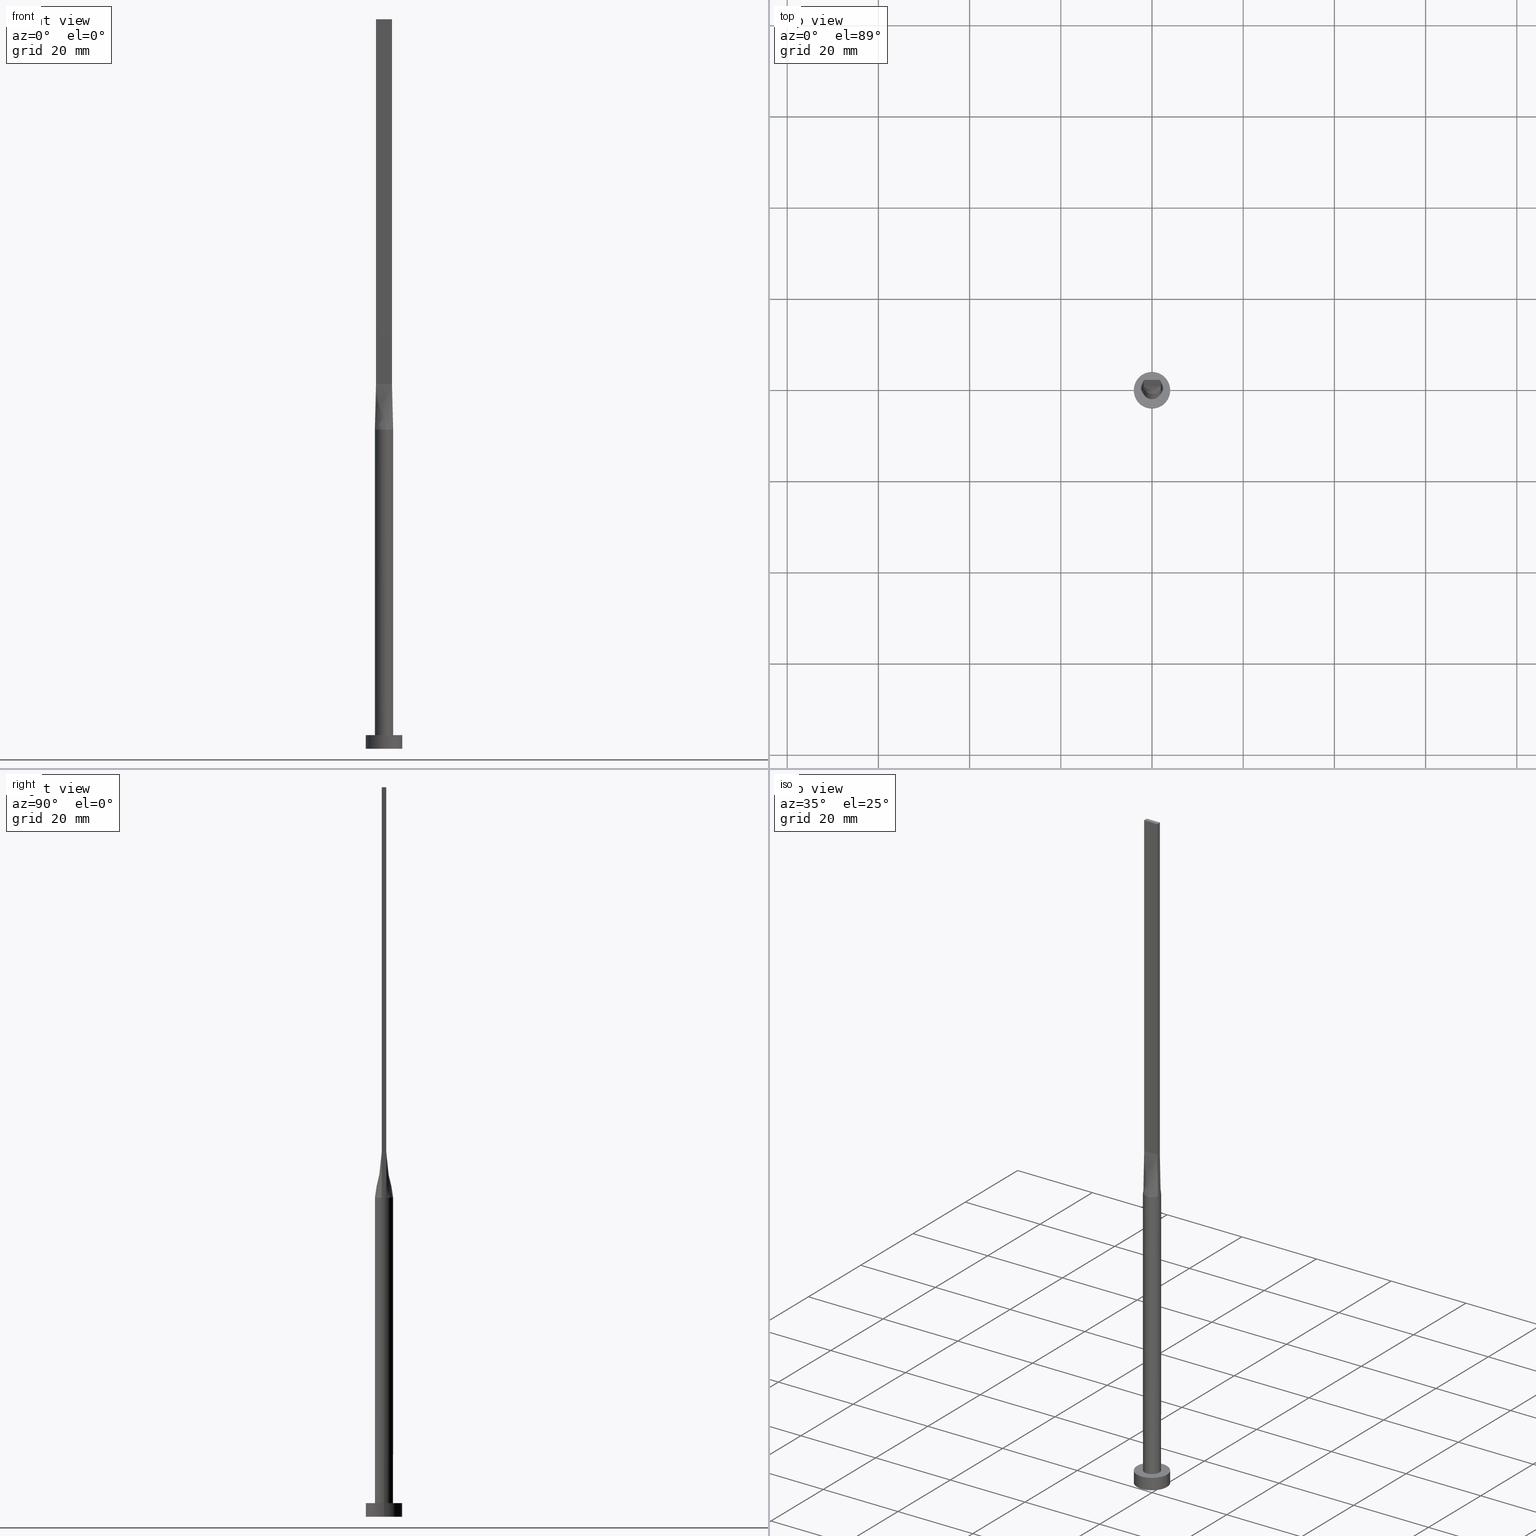
[diagram: canonical four-view strip — front | top / right | iso, engineering-drawing reading convention]
A machine part, canonical four-view strip (front | top / right | iso — engineering-drawing reading convention). The complete STEP part file that produces these views, byte-faithful:
ISO-10303-21;
HEADER;
FILE_DESCRIPTION (( 'STEP AP203' ),
    '1' );
FILE_NAME ('cb37.STEP',
    '2026-02-12T09:06:30',
    ( '' ),
    ( '' ),
    'SwSTEP 2.0',
    'SolidWorks 2019',
    '' );
FILE_SCHEMA (( 'CONFIG_CONTROL_DESIGN' ));
ENDSEC;

DATA;
#1 = CARTESIAN_POINT ( 'NONE',  ( -1.749999999999999778, 0.5000000000000002220, 80.00000000000000000 ) ) ;
#2 = CARTESIAN_POINT ( 'NONE',  ( 1.923154993136894975, 0.5494733089275741778, 70.00000000000000000 ) ) ;
#3 = ADVANCED_FACE ( 'NONE', ( #276 ), #285, .F. ) ;
#4 = AXIS2_PLACEMENT_3D ( 'NONE', #160, #113, #525 ) ;
#5 = CARTESIAN_POINT ( 'NONE',  ( 0.7291666666666657415, 0.5000000000000002220, 79.99999999999998579 ) ) ;
#6 = CARTESIAN_POINT ( 'NONE',  ( 0.000000000000000000, 0.000000000000000000, 3.000000000000000000 ) ) ;
#7 = CARTESIAN_POINT ( 'NONE',  ( -1.749999999999999778, 0.5000000000000002220, 80.00000000000000000 ) ) ;
#8 = PERSON_AND_ORGANIZATION ( #573, #201 ) ;
#9 = EDGE_CURVE ( 'NONE', #428, #472, #557, .T. ) ;
#10 = CARTESIAN_POINT ( 'NONE',  ( 4.000000000000000000, 4.898587196589412829E-16, 3.000000000000000000 ) ) ;
#11 = DATE_TIME_ROLE ( 'creation_date' ) ;
#12 = ORIENTED_EDGE ( 'NONE', *, *, #377, .T. ) ;
#13 = PRODUCT_RELATED_PRODUCT_CATEGORY ( 'detail', '', ( #562 ) ) ;
#14 = CARTESIAN_POINT ( 'NONE',  ( -0.9545234919502401105, 1.774214358793530177, 70.00000000000000000 ) ) ;
#15 = CARTESIAN_POINT ( 'NONE',  ( 1.923047895281646325, 0.5494422557947563623, 70.00000000000000000 ) ) ;
#16 = CARTESIAN_POINT ( 'NONE',  ( 1.750000000000000000, -0.4999999999999997780, 160.0000000000000000 ) ) ;
#17 = SHAPE_DEFINITION_REPRESENTATION ( #420, #107 ) ;
#18 = CARTESIAN_POINT ( 'NONE',  ( 1.999999999999999556, 0.1867399261870121008, 70.00000000000000000 ) ) ;
#19 = APPROVAL_PERSON_ORGANIZATION ( #337, #31, #155 ) ;
#20 = DIRECTION ( 'NONE',  ( 0.01730198768854153066, -0.004943425053868934910, 0.9998380887777591486 ) ) ;
#21 = ADVANCED_FACE ( 'NONE', ( #509 ), #36, .T. ) ;
#22 = CARTESIAN_POINT ( 'NONE',  ( 1.749999999999999778, 0.5000000000000002220, 160.0000000000000000 ) ) ;
#23 = DIRECTION ( 'NONE',  ( 0.000000000000000000, 0.000000000000000000, 1.000000000000000000 ) ) ;
#24 = CIRCLE ( 'NONE', #213, 2.000000000000000000 ) ;
#25 = COORDINATED_UNIVERSAL_TIME_OFFSET ( 1, 0, .AHEAD. ) ;
#26 = CARTESIAN_POINT ( 'NONE',  ( 1.749999999999999778, -0.1666666666666663243, 79.99999999999998579 ) ) ;
#27 = LINE ( 'NONE', #16, #269 ) ;
#28 = ORIENTED_EDGE ( 'NONE', *, *, #558, .F. ) ;
#29 = CARTESIAN_POINT ( 'NONE',  ( -1.836523947640823051, 0.5247211278973779036, 75.00000000000001421 ) ) ;
#30 = ORIENTED_EDGE ( 'NONE', *, *, #558, .T. ) ;
#31 = APPROVAL ( #196, 'NEUR�EN�' ) ;
#32 = DIRECTION ( 'NONE',  ( -2.168404344971009361E-16, -1.000000000000000000, 0.000000000000000000 ) ) ;
#33 = CARTESIAN_POINT ( 'NONE',  ( -0.1458333333333353687, -0.4999999999999995559, 80.00000000000000000 ) ) ;
#34 = VECTOR ( 'NONE', #475, 1000.000000000000000 ) ;
#35 = ORIENTED_EDGE ( 'NONE', *, *, #457, .F. ) ;
#36 = B_SPLINE_SURFACE_WITH_KNOTS ( 'NONE', 3, 1, ( 
 ( #560, #520 ),
 ( #372, #98 ),
 ( #150, #26 ),
 ( #18, #279 ),
 ( #554, #415 ),
 ( #15, #197 ) ),
 .UNSPECIFIED., .F., .F., .F.,
 ( 4, 2, 4 ),
 ( 2, 2 ),
 ( 0.000000000000000000, 0.5000000000000000000, 1.000000000000000000 ),
 ( 0.000000000000000000, 1.000000000000000000 ),
 .UNSPECIFIED. ) ;
#37 = LINE ( 'NONE', #575, #544 ) ;
#38 = CARTESIAN_POINT ( 'NONE',  ( 0.9545234919502404436, -1.774214358793530177, 69.99999999999998579 ) ) ;
#39 = EDGE_LOOP ( 'NONE', ( #293, #80, #515, #35, #162 ) ) ;
#40 = DIRECTION ( 'NONE',  ( 1.000000000000000000, 0.000000000000000000, -0.000000000000000000 ) ) ;
#41 = EDGE_CURVE ( 'NONE', #249, #257, #168, .T. ) ;
#42 = CARTESIAN_POINT ( 'NONE',  ( -0.5022746254375808350, -1.951069421695587724, 69.99999999999998579 ) ) ;
#43 = CARTESIAN_POINT ( 'NONE',  ( 1.750000000000000000, -0.4999999999999997780, 80.00000000000000000 ) ) ;
#44 = EDGE_CURVE ( 'NONE', #299, #421, #229, .T. ) ;
#45 = CARTESIAN_POINT ( 'NONE',  ( -1.923047895281646325, 0.5494422557947555852, 70.00000000000000000 ) ) ;
#46 = ORIENTED_EDGE ( 'NONE', *, *, #9, .F. ) ;
#47 = PLANE ( 'NONE',  #424 ) ;
#48 = DATE_AND_TIME ( #136, #432 ) ;
#49 = ORIENTED_EDGE ( 'NONE', *, *, #275, .F. ) ;
#50 = CIRCLE ( 'NONE', #455, 2.000000000000000000 ) ;
#51 = CARTESIAN_POINT ( 'NONE',  ( -0.2514338042514528415, 1.999999999999999556, 70.00000000000002842 ) ) ;
#52 = CARTESIAN_POINT ( 'NONE',  ( 0.2514338042514535632, 1.999999999999999556, 70.00000000000001421 ) ) ;
#53 = APPROVAL_DATE_TIME ( #48, #321 ) ;
#54 = DIRECTION ( 'NONE',  ( 0.000000000000000000, 0.000000000000000000, 1.000000000000000000 ) ) ;
#55 = CARTESIAN_POINT ( 'NONE',  ( 1.486037034853319616, 1.356520562679217834, 69.99999999999998579 ) ) ;
#56 = DIRECTION ( 'NONE',  ( 2.168404344971009361E-16, 1.000000000000000000, 0.000000000000000000 ) ) ;
#57 = AXIS2_PLACEMENT_3D ( 'NONE', #157, #77, #301 ) ;
#58 = CYLINDRICAL_SURFACE ( 'NONE', #454, 4.000000000000000000 ) ;
#59 = PERSON_AND_ORGANIZATION ( #573, #201 ) ;
#60 = CARTESIAN_POINT ( 'NONE',  ( -1.749999999999999778, 0.5000000000000002220, 160.0000000000000000 ) ) ;
#61 = ADVANCED_FACE ( 'NONE', ( #378 ), #143, .F. ) ;
#62 = CARTESIAN_POINT ( 'NONE',  ( -1.879022738048941710, 0.7035303061092221810, 70.00000000000000000 ) ) ;
#63 = ORIENTED_EDGE ( 'NONE', *, *, #492, .F. ) ;
#64 = LOCAL_TIME ( 10, 6, 30.00000000000000000, #431 ) ;
#65 = DIRECTION ( 'NONE',  ( 0.000000000000000000, 0.000000000000000000, 1.000000000000000000 ) ) ;
#66 = PERSON_AND_ORGANIZATION_ROLE ( 'classification_officer' ) ;
#67 = ORIENTED_EDGE ( 'NONE', *, *, #235, .T. ) ;
#68 = DIRECTION ( 'NONE',  ( -0.000000000000000000, -0.000000000000000000, -1.000000000000000000 ) ) ;
#69 = VECTOR ( 'NONE', #394, 1000.000000000000114 ) ;
#70 = ORIENTED_EDGE ( 'NONE', *, *, #230, .T. ) ;
#71 = DIRECTION ( 'NONE',  ( 1.000000000000000000, 0.000000000000000000, 0.000000000000000000 ) ) ;
#72 = VERTEX_POINT ( 'NONE', #517 ) ;
#73 = CC_DESIGN_PERSON_AND_ORGANIZATION_ASSIGNMENT ( #563, #66, ( #191 ) ) ;
#74 = CARTESIAN_POINT ( 'NONE',  ( -1.750000000000000000, -0.4999999999999995559, 160.0000000000000000 ) ) ;
#75 = CARTESIAN_POINT ( 'NONE',  ( 1.020833333333331927, -0.4999999999999995559, 79.99999999999998579 ) ) ;
#76 = ORIENTED_EDGE ( 'NONE', *, *, #358, .T. ) ;
#77 = DIRECTION ( 'NONE',  ( 0.000000000000000000, 0.000000000000000000, 1.000000000000000000 ) ) ;
#78 = CARTESIAN_POINT ( 'NONE',  ( -0.7291666666666681840, -0.4999999999999995559, 79.99999999999998579 ) ) ;
#79 = ORIENTED_EDGE ( 'NONE', *, *, #408, .T. ) ;
#80 = ORIENTED_EDGE ( 'NONE', *, *, #484, .T. ) ;
#81 = ADVANCED_FACE ( 'NONE', ( #105 ), #338, .T. ) ;
#82 = CARTESIAN_POINT ( 'NONE',  ( -1.973362360690451567, 0.3733416268639390134, 70.00000000000001421 ) ) ;
#83 = CARTESIAN_POINT ( 'NONE',  ( 0.2514338042514523419, -2.000000000000000444, 70.00000000000001421 ) ) ;
#84 = CARTESIAN_POINT ( 'NONE',  ( -0.2916666666666685725, -0.4999999999999995559, 79.99999999999998579 ) ) ;
#85 = VECTOR ( 'NONE', #133, 1000.000000000000000 ) ;
#86 = CARTESIAN_POINT ( 'NONE',  ( 1.749999999999998890, 0.5000000000000002220, 80.00000000000000000 ) ) ;
#87 = DIRECTION ( 'NONE',  ( 0.000000000000000000, 0.000000000000000000, 1.000000000000000000 ) ) ;
#88 = CC_DESIGN_PERSON_AND_ORGANIZATION_ASSIGNMENT ( #90, #264, ( #562 ) ) ;
#89 = CARTESIAN_POINT ( 'NONE',  ( -0.5022746254375797248, 1.951069421695588169, 70.00000000000000000 ) ) ;
#90 = PERSON_AND_ORGANIZATION ( #573, #201 ) ;
#91 = CARTESIAN_POINT ( 'NONE',  ( 1.458333333333332371, 0.5000000000000002220, 79.99999999999998579 ) ) ;
#92 = DIRECTION ( 'NONE',  ( -0.000000000000000000, -0.000000000000000000, -1.000000000000000000 ) ) ;
#93 = EDGE_LOOP ( 'NONE', ( #233, #159, #108, #405, #138, #487 ) ) ;
#94 = CARTESIAN_POINT ( 'NONE',  ( 0.5022746254375803909, 1.951069421695587947, 70.00000000000001421 ) ) ;
#95 = ADVANCED_FACE ( 'NONE', ( #486 ), #165, .T. ) ;
#96 = CARTESIAN_POINT ( 'NONE',  ( 1.750000000000000000, -0.4999999999999997780, 160.0000000000000000 ) ) ;
#97 = DIRECTION ( 'NONE',  ( 1.000000000000000000, -6.195440985631454085E-17, 0.000000000000000000 ) ) ;
#98 = CARTESIAN_POINT ( 'NONE',  ( 1.749999999999999778, -0.3333333333333330373, 79.99999999999998579 ) ) ;
#99 = DIRECTION ( 'NONE',  ( 1.000000000000000000, 0.000000000000000000, 0.000000000000000000 ) ) ;
#100 = DIRECTION ( 'NONE',  ( 0.000000000000000000, -1.000000000000000000, 0.000000000000000000 ) ) ;
#101 = ADVANCED_FACE ( 'NONE', ( #306 ), #398, .F. ) ;
#102 = DIRECTION ( 'NONE',  ( 1.000000000000000000, 0.000000000000000000, -0.000000000000000000 ) ) ;
#103 = EDGE_LOOP ( 'NONE', ( #49, #203, #551, #253 ) ) ;
#104 = CARTESIAN_POINT ( 'NONE',  ( 1.749999999999999778, 0.5000000000000002220, 80.00000000000000000 ) ) ;
#105 = FACE_OUTER_BOUND ( 'NONE', #343, .T. ) ;
#106 = PLANE ( 'NONE',  #205 ) ;
#107 = ADVANCED_BREP_SHAPE_REPRESENTATION ( 'cb37', ( #267, #305 ), #182 ) ;
#108 = ORIENTED_EDGE ( 'NONE', *, *, #243, .T. ) ;
#109 = AXIS2_PLACEMENT_3D ( 'NONE', #536, #401, #507 ) ;
#110 = CARTESIAN_POINT ( 'NONE',  ( -1.923179810488875541, 0.5494804890868837388, 70.00000000000000000 ) ) ;
#111 = ADVANCED_FACE ( 'NONE', ( #532 ), #468, .T. ) ;
#112 = ORIENTED_EDGE ( 'NONE', *, *, #235, .F. ) ;
#113 = DIRECTION ( 'NONE',  ( 0.000000000000000000, 0.000000000000000000, 1.000000000000000000 ) ) ;
#114 = CARTESIAN_POINT ( 'NONE',  ( -1.750000000000000000, -0.4999999999999995559, 80.00000000000000000 ) ) ;
#115 = VERTEX_POINT ( 'NONE', #166 ) ;
#116 = EDGE_LOOP ( 'NONE', ( #67, #173, #46, #569 ) ) ;
#117 = CARTESIAN_POINT ( 'NONE',  ( -1.750000000000000000, -0.4999999999999995559, 160.0000000000000000 ) ) ;
#118 = CARTESIAN_POINT ( 'NONE',  ( -1.155438169178558461, -1.647245198242353714, 70.00000000000001421 ) ) ;
#119 = ORIENTED_EDGE ( 'NONE', *, *, #377, .F. ) ;
#120 = LINE ( 'NONE', #140, #319 ) ;
#121 = VECTOR ( 'NONE', #479, 1000.000000000000000 ) ;
#122 = CARTESIAN_POINT ( 'NONE',  ( -1.749999999999999778, -0.1666666666666665186, 79.99999999999998579 ) ) ;
#123 = AXIS2_PLACEMENT_3D ( 'NONE', #214, #581, #170 ) ;
#124 = CARTESIAN_POINT ( 'NONE',  ( -1.812374357931689994, -0.8669367617086277678, 70.00000000000001421 ) ) ;
#125 = CARTESIAN_POINT ( 'NONE',  ( -1.749999999999999778, 0.1666666666666667129, 79.99999999999998579 ) ) ;
#126 = CARTESIAN_POINT ( 'NONE',  ( 1.923047895281646325, 0.5494422557947561403, 70.00000000000000000 ) ) ;
#127 = CARTESIAN_POINT ( 'NONE',  ( -1.750000000000000000, -0.4999999999999995559, 80.00000000000000000 ) ) ;
#128 = CC_DESIGN_PERSON_AND_ORGANIZATION_ASSIGNMENT ( #59, #423, ( #217 ) ) ;
#129 = AXIS2_PLACEMENT_3D ( 'NONE', #144, #340, #519 ) ;
#130 = CARTESIAN_POINT ( 'NONE',  ( 0.2514338042514535632, 1.999999999999999556, 70.00000000000001421 ) ) ;
#131 = DIRECTION ( 'NONE',  ( 1.000000000000000000, 0.000000000000000000, 0.000000000000000000 ) ) ;
#132 = DIRECTION ( 'NONE',  ( 6.195440985631454085E-17, 1.000000000000000000, -0.000000000000000000 ) ) ;
#133 = DIRECTION ( 'NONE',  ( -2.168404344971009361E-16, -1.000000000000000000, 0.000000000000000000 ) ) ;
#134 = ADVANCED_FACE ( 'NONE', ( #351 ), #529, .T. ) ;
#135 = CARTESIAN_POINT ( 'NONE',  ( 1.616149014776643522, 1.193458220519943103, 69.99999999999998579 ) ) ;
#136 = CALENDAR_DATE ( 2026, 12, 2 ) ;
#137 = AXIS2_PLACEMENT_3D ( 'NONE', #60, #418, #56 ) ;
#138 = ORIENTED_EDGE ( 'NONE', *, *, #250, .F. ) ;
#139 = CARTESIAN_POINT ( 'NONE',  ( -1.879022738048941710, 0.7035303061092221810, 70.00000000000000000 ) ) ;
#140 = CARTESIAN_POINT ( 'NONE',  ( -1.836523947640823273, -0.5247211278973773485, 75.00000000000001421 ) ) ;
#141 = ORIENTED_EDGE ( 'NONE', *, *, #243, .F. ) ;
#142 = CYLINDRICAL_SURFACE ( 'NONE', #556, 2.000000000000000000 ) ;
#143 = PLANE ( 'NONE',  #222 ) ;
#144 = CARTESIAN_POINT ( 'NONE',  ( 0.000000000000000000, 0.000000000000000000, 3.000000000000000000 ) ) ;
#145 = SECURITY_CLASSIFICATION_LEVEL ( 'unclassified' ) ;
#146 = EDGE_LOOP ( 'NONE', ( #425, #200, #211, #393, #76, #478 ) ) ;
#147 = EDGE_LOOP ( 'NONE', ( #574, #63, #349, #323 ) ) ;
#148 = AXIS2_PLACEMENT_3D ( 'NONE', #283, #23, #419 ) ;
#149 = DIRECTION ( 'NONE',  ( 0.000000000000000000, 0.000000000000000000, 1.000000000000000000 ) ) ;
#150 = CARTESIAN_POINT ( 'NONE',  ( 1.999999999999999556, -0.1867399261870124894, 70.00000000000000000 ) ) ;
#151 = DIRECTION ( 'NONE',  ( -0.000000000000000000, -0.000000000000000000, -1.000000000000000000 ) ) ;
#152 = APPROVAL_ROLE ( '' ) ;
#153 = EDGE_LOOP ( 'NONE', ( #70, #411, #112, #324 ) ) ;
#154 = CARTESIAN_POINT ( 'NONE',  ( 0.000000000000000000, 0.000000000000000000, 70.00000000000000000 ) ) ;
#155 = APPROVAL_ROLE ( '' ) ;
#156 = VERTEX_POINT ( 'NONE', #355 ) ;
#157 = CARTESIAN_POINT ( 'NONE',  ( 0.000000000000000000, 0.000000000000000000, 70.00000000000000000 ) ) ;
#158 = VECTOR ( 'NONE', #335, 1000.000000000000000 ) ;
#159 = ORIENTED_EDGE ( 'NONE', *, *, #163, .T. ) ;
#160 = CARTESIAN_POINT ( 'NONE',  ( 0.000000000000000000, 0.000000000000000000, 3.000000000000000000 ) ) ;
#161 = CARTESIAN_POINT ( 'NONE',  ( -1.973362360690451345, -0.3733416268639377367, 70.00000000000000000 ) ) ;
#162 = ORIENTED_EDGE ( 'NONE', *, *, #314, .F. ) ;
#163 = EDGE_CURVE ( 'NONE', #249, #433, #534, .T. ) ;
#164 = CARTESIAN_POINT ( 'NONE',  ( -1.923179810488875541, 0.5494804890868837388, 70.00000000000000000 ) ) ;
#165 = B_SPLINE_SURFACE_WITH_KNOTS ( 'NONE', 3, 1, ( 
 ( #482, #1 ),
 ( #82, #207 ),
 ( #571, #125 ),
 ( #392, #122 ),
 ( #161, #216 ),
 ( #357, #493 ) ),
 .UNSPECIFIED., .F., .F., .F.,
 ( 4, 2, 4 ),
 ( 2, 2 ),
 ( 0.000000000000000000, 0.5000000000000000000, 1.000000000000000000 ),
 ( 0.000000000000000000, 1.000000000000000000 ),
 .UNSPECIFIED. ) ;
#166 = CARTESIAN_POINT ( 'NONE',  ( 1.923186205402444449, -0.5494823831763672173, 70.00000000000000000 ) ) ;
#167 = UNCERTAINTY_MEASURE_WITH_UNIT (LENGTH_MEASURE( 1.000000000000000082E-05 ), #359, 'distance_accuracy_value', 'NONE');
#168 = CIRCLE ( 'NONE', #414, 2.000000000000000000 ) ;
#169 = CARTESIAN_POINT ( 'NONE',  ( -1.486037034853320060, -1.356520562679217390, 70.00000000000001421 ) ) ;
#170 = DIRECTION ( 'NONE',  ( -1.000000000000000000, 0.000000000000000000, 0.000000000000000000 ) ) ;
#171 = ADVANCED_FACE ( 'NONE', ( #179 ), #535, .F. ) ;
#172 = CARTESIAN_POINT ( 'NONE',  ( 1.616149014776643522, -1.193458220519943547, 70.00000000000002842 ) ) ;
#173 = ORIENTED_EDGE ( 'NONE', *, *, #539, .F. ) ;
#174 = CARTESIAN_POINT ( 'NONE',  ( 1.812374357931689328, 0.8669367617086293221, 70.00000000000001421 ) ) ;
#175 = VECTOR ( 'NONE', #430, 1000.000000000000114 ) ;
#176 = DIRECTION ( 'NONE',  ( -0.000000000000000000, -0.000000000000000000, -1.000000000000000000 ) ) ;
#177 = COORDINATED_UNIVERSAL_TIME_OFFSET ( 1, 0, .AHEAD. ) ;
#178 = ADVANCED_FACE ( 'NONE', ( #403 ), #47, .F. ) ;
#179 = FACE_OUTER_BOUND ( 'NONE', #247, .T. ) ;
#180 = LINE ( 'NONE', #312, #85 ) ;
#181 = ORIENTED_EDGE ( 'NONE', *, *, #492, .T. ) ;
#182 =( GEOMETRIC_REPRESENTATION_CONTEXT ( 3 ) GLOBAL_UNCERTAINTY_ASSIGNED_CONTEXT ( ( #167 ) ) GLOBAL_UNIT_ASSIGNED_CONTEXT ( ( #359, #274, #365 ) ) REPRESENTATION_CONTEXT ( 'NONE', 'WORKASPACE' ) );
#183 = CARTESIAN_POINT ( 'NONE',  ( 1.616149014776643522, 1.193458220519943103, 69.99999999999998579 ) ) ;
#184 = ORIENTED_EDGE ( 'NONE', *, *, #446, .F. ) ;
#185 = DIRECTION ( 'NONE',  ( 2.168404344971008868E-16, -1.000000000000000000, 0.000000000000000000 ) ) ;
#186 = DIRECTION ( 'NONE',  ( 0.000000000000000000, 0.000000000000000000, 1.000000000000000000 ) ) ;
#187 = LINE ( 'NONE', #382, #261 ) ;
#188 = B_SPLINE_SURFACE_WITH_KNOTS ( 'NONE', 3, 1, ( 
 ( #126, #86 ),
 ( #273, #459 ),
 ( #500, #91 ),
 ( #135, #504 ),
 ( #55, #311 ),
 ( #308, #5 ),
 ( #542, #263 ),
 ( #94, #315 ),
 ( #52, #461 ),
 ( #51, #364 ),
 ( #400, #268 ),
 ( #218, #540 ),
 ( #456, #226 ),
 ( #495, #450 ),
 ( #409, #406 ),
 ( #412, #498 ),
 ( #139, #223 ),
 ( #45, #7 ) ),
 .UNSPECIFIED., .F., .F., .F.,
 ( 4, 2, 2, 2, 2, 2, 2, 2, 4 ),
 ( 2, 2 ),
 ( 0.000000000000000000, 0.1249999999999999722, 0.2500000000000000000, 0.3750000000000000000, 0.5000000000000001110, 0.6250000000000001110, 0.7500000000000000000, 0.8750000000000000000, 1.000000000000000000 ),
 ( 0.000000000000000000, 1.000000000000000000 ),
 .UNSPECIFIED. ) ;
#189 = APPLICATION_CONTEXT ( 'configuration controlled 3d designs of mechanical parts and assemblies' ) ;
#190 = CARTESIAN_POINT ( 'NONE',  ( -4.000000000000000000, 0.000000000000000000, 3.000000000000000000 ) ) ;
#191 = SECURITY_CLASSIFICATION ( '', '', #145 ) ;
#192 = LINE ( 'NONE', #280, #34 ) ;
#193 = DIRECTION ( 'NONE',  ( -1.000000000000000000, 0.000000000000000000, 0.000000000000000000 ) ) ;
#194 = AXIS2_PLACEMENT_3D ( 'NONE', #245, #427, #71 ) ;
#195 = LINE ( 'NONE', #333, #332 ) ;
#196 = APPROVAL_STATUS ( 'not_yet_approved' ) ;
#197 = CARTESIAN_POINT ( 'NONE',  ( 1.749999999999999778, 0.5000000000000002220, 80.00000000000000000 ) ) ;
#198 = DIRECTION ( 'NONE',  ( -0.000000000000000000, -0.000000000000000000, -1.000000000000000000 ) ) ;
#199 = ORIENTED_EDGE ( 'NONE', *, *, #426, .T. ) ;
#200 = ORIENTED_EDGE ( 'NONE', *, *, #429, .F. ) ;
#201 = ORGANIZATION ( 'NEUR�EN�', 'NEUR�EN�', '' ) ;
#202 = CARTESIAN_POINT ( 'NONE',  ( 2.000000000000000000, 2.449293598294706414E-16, 3.000000000000000000 ) ) ;
#203 = ORIENTED_EDGE ( 'NONE', *, *, #388, .T. ) ;
#204 = DIRECTION ( 'NONE',  ( 1.000000000000000000, 0.000000000000000000, 0.000000000000000000 ) ) ;
#205 = AXIS2_PLACEMENT_3D ( 'NONE', #288, #65, #102 ) ;
#206 = ADVANCED_FACE ( 'NONE', ( #220 ), #188, .T. ) ;
#207 = CARTESIAN_POINT ( 'NONE',  ( -1.749999999999999778, 0.3333333333333334259, 79.99999999999998579 ) ) ;
#208 = EDGE_LOOP ( 'NONE', ( #396, #548, #119, #512 ) ) ;
#209 = LINE ( 'NONE', #485, #579 ) ;
#210 = CARTESIAN_POINT ( 'NONE',  ( -1.879022738048942598, -0.7035303061092208488, 70.00000000000001421 ) ) ;
#211 = ORIENTED_EDGE ( 'NONE', *, *, #408, .F. ) ;
#212 = CARTESIAN_POINT ( 'NONE',  ( -1.166666666666667851, -0.4999999999999995559, 79.99999999999998579 ) ) ;
#213 = AXIS2_PLACEMENT_3D ( 'NONE', #481, #251, #204 ) ;
#214 = CARTESIAN_POINT ( 'NONE',  ( 0.000000000000000000, 0.000000000000000000, 70.00000000000000000 ) ) ;
#215 = CC_DESIGN_DATE_AND_TIME_ASSIGNMENT ( #374, #466, ( #191 ) ) ;
#216 = CARTESIAN_POINT ( 'NONE',  ( -1.749999999999999778, -0.3333333333333330373, 79.99999999999998579 ) ) ;
#217 = PRODUCT_DEFINITION_FORMATION_WITH_SPECIFIED_SOURCE ( 'LIBOVOLN�', '', #562, .NOT_KNOWN. ) ;
#218 = CARTESIAN_POINT ( 'NONE',  ( -0.9545234919502401105, 1.774214358793530177, 70.00000000000000000 ) ) ;
#219 = DIRECTION ( 'NONE',  ( -1.000000000000000000, 0.000000000000000000, 0.000000000000000000 ) ) ;
#220 = FACE_OUTER_BOUND ( 'NONE', #153, .T. ) ;
#221 = PERSON_AND_ORGANIZATION ( #573, #201 ) ;
#222 = AXIS2_PLACEMENT_3D ( 'NONE', #383, #100, #282 ) ;
#223 = CARTESIAN_POINT ( 'NONE',  ( -1.604166666666666519, 0.5000000000000002220, 79.99999999999998579 ) ) ;
#224 = APPLICATION_PROTOCOL_DEFINITION ( 'international standard', 'config_control_design', 1994, #442 ) ;
#225 = VERTEX_POINT ( 'NONE', #10 ) ;
#226 = CARTESIAN_POINT ( 'NONE',  ( -0.7291666666666671848, 0.5000000000000002220, 79.99999999999998579 ) ) ;
#227 = PERSON_AND_ORGANIZATION_ROLE ( 'creator' ) ;
#228 = LOCAL_TIME ( 10, 6, 30.00000000000000000, #511 ) ;
#229 = LINE ( 'NONE', #190, #158 ) ;
#230 = EDGE_CURVE ( 'NONE', #257, #474, #497, .T. ) ;
#231 = DIRECTION ( 'NONE',  ( -1.000000000000000000, -2.168404344971008868E-16, 0.000000000000000000 ) ) ;
#232 = DIRECTION ( 'NONE',  ( -0.01730198768854153066, -0.004943425053868957461, -0.9998380887777591486 ) ) ;
#233 = ORIENTED_EDGE ( 'NONE', *, *, #41, .F. ) ;
#234 = AXIS2_PLACEMENT_3D ( 'NONE', #154, #149, #516 ) ;
#235 = EDGE_CURVE ( 'NONE', #290, #296, #195, .T. ) ;
#236 = DIRECTION ( 'NONE',  ( -0.000000000000000000, -0.000000000000000000, -1.000000000000000000 ) ) ;
#237 = CALENDAR_DATE ( 2026, 12, 2 ) ;
#238 = ORIENTED_EDGE ( 'NONE', *, *, #429, .T. ) ;
#239 = CARTESIAN_POINT ( 'NONE',  ( 1.923154993136894975, 0.5494733089275741778, 70.00000000000000000 ) ) ;
#240 = ORIENTED_EDGE ( 'NONE', *, *, #518, .T. ) ;
#241 = CARTESIAN_POINT ( 'NONE',  ( 1.750000000000000000, -0.4999999999999997780, 80.00000000000000000 ) ) ;
#242 = PERSON_AND_ORGANIZATION_ROLE ( 'creator' ) ;
#243 = EDGE_CURVE ( 'NONE', #433, #72, #494, .T. ) ;
#244 = VERTEX_POINT ( 'NONE', #559 ) ;
#245 = CARTESIAN_POINT ( 'NONE',  ( 0.000000000000000000, 0.000000000000000000, 70.00000000000000000 ) ) ;
#246 = CALENDAR_DATE ( 2026, 12, 2 ) ;
#247 = EDGE_LOOP ( 'NONE', ( #390, #328, #402, #181 ) ) ;
#248 = CARTESIAN_POINT ( 'NONE',  ( 0.000000000000000000, 0.000000000000000000, 70.00000000000000000 ) ) ;
#249 = VERTEX_POINT ( 'NONE', #471 ) ;
#250 = EDGE_CURVE ( 'NONE', #474, #156, #438, .T. ) ;
#251 = DIRECTION ( 'NONE',  ( 0.000000000000000000, 0.000000000000000000, 1.000000000000000000 ) ) ;
#252 = CARTESIAN_POINT ( 'NONE',  ( -0.9545234919502417759, -1.774214358793529067, 70.00000000000000000 ) ) ;
#253 = ORIENTED_EDGE ( 'NONE', *, *, #44, .F. ) ;
#254 = CARTESIAN_POINT ( 'NONE',  ( -1.749999999999999778, 0.5000000000000002220, 160.0000000000000000 ) ) ;
#255 = CIRCLE ( 'NONE', #4, 4.000000000000000000 ) ;
#256 = CARTESIAN_POINT ( 'NONE',  ( -0.5833333333333350357, -0.4999999999999995559, 79.99999999999998579 ) ) ;
#257 = VERTEX_POINT ( 'NONE', #239 ) ;
#258 = DIRECTION ( 'NONE',  ( 1.000000000000000000, 0.000000000000000000, -0.000000000000000000 ) ) ;
#259 = APPROVAL_PERSON_ORGANIZATION ( #8, #321, #543 ) ;
#260 = CARTESIAN_POINT ( 'NONE',  ( 1.166666666666665408, -0.4999999999999995559, 79.99999999999998579 ) ) ;
#261 = VECTOR ( 'NONE', #68, 1000.000000000000000 ) ;
#262 = CARTESIAN_POINT ( 'NONE',  ( 0.2916666666666649643, -0.4999999999999995559, 79.99999999999998579 ) ) ;
#263 = CARTESIAN_POINT ( 'NONE',  ( 0.5833333333333323711, 0.5000000000000002220, 79.99999999999998579 ) ) ;
#264 = PERSON_AND_ORGANIZATION_ROLE ( 'design_owner' ) ;
#265 = CARTESIAN_POINT ( 'NONE',  ( -1.155438169178558017, 1.647245198242353936, 70.00000000000001421 ) ) ;
#266 = APPROVAL_STATUS ( 'not_yet_approved' ) ;
#267 = MANIFOLD_SOLID_BREP ( 'P�idat vysunut�m5', #318 ) ;
#268 = CARTESIAN_POINT ( 'NONE',  ( -0.2916666666666674623, 0.5000000000000002220, 79.99999999999998579 ) ) ;
#269 = VECTOR ( 'NONE', #198, 1000.000000000000000 ) ;
#270 = ORIENTED_EDGE ( 'NONE', *, *, #446, .T. ) ;
#271 = VECTOR ( 'NONE', #92, 1000.000000000000000 ) ;
#272 = DESIGN_CONTEXT ( 'detailed design', #442, 'design' ) ;
#273 = CARTESIAN_POINT ( 'NONE',  ( 1.879022738048942154, 0.7035303061092218480, 70.00000000000001421 ) ) ;
#274 =( NAMED_UNIT ( * ) PLANE_ANGLE_UNIT ( ) SI_UNIT ( $, .RADIAN. ) );
#275 = EDGE_CURVE ( 'NONE', #225, #299, #489, .T. ) ;
#276 = FACE_OUTER_BOUND ( 'NONE', #147, .T. ) ;
#277 = CARTESIAN_POINT ( 'NONE',  ( 1.879022738048942154, 0.7035303061092218480, 70.00000000000001421 ) ) ;
#278 = CC_DESIGN_PERSON_AND_ORGANIZATION_ASSIGNMENT ( #334, #242, ( #217 ) ) ;
#279 = CARTESIAN_POINT ( 'NONE',  ( 1.749999999999999778, 0.1666666666666669905, 79.99999999999998579 ) ) ;
#280 = CARTESIAN_POINT ( 'NONE',  ( -2.000000000000000000, 0.000000000000000000, 70.00000000000000000 ) ) ;
#281 = APPROVAL_STATUS ( 'not_yet_approved' ) ;
#282 = DIRECTION ( 'NONE',  ( 0.000000000000000000, -0.000000000000000000, -1.000000000000000000 ) ) ;
#283 = CARTESIAN_POINT ( 'NONE',  ( 0.000000000000000000, 0.000000000000000000, 3.000000000000000000 ) ) ;
#284 = PERSON_AND_ORGANIZATION ( #573, #201 ) ;
#285 = PLANE ( 'NONE',  #137 ) ;
#286 = DIRECTION ( 'NONE',  ( -1.000000000000000000, 0.000000000000000000, 0.000000000000000000 ) ) ;
#287 = CARTESIAN_POINT ( 'NONE',  ( 0.000000000000000000, 0.000000000000000000, 70.00000000000000000 ) ) ;
#288 = CARTESIAN_POINT ( 'NONE',  ( 0.000000000000000000, 0.000000000000000000, 3.000000000000000000 ) ) ;
#289 = APPROVAL_DATE_TIME ( #550, #31 ) ;
#290 = VERTEX_POINT ( 'NONE', #104 ) ;
#291 = VECTOR ( 'NONE', #193, 1000.000000000000000 ) ;
#292 = FACE_OUTER_BOUND ( 'NONE', #93, .T. ) ;
#293 = ORIENTED_EDGE ( 'NONE', *, *, #250, .T. ) ;
#294 = CARTESIAN_POINT ( 'NONE',  ( -1.749999999999999778, 0.5000000000000002220, 80.00000000000000000 ) ) ;
#295 = CARTESIAN_POINT ( 'NONE',  ( 0.1458333333333314275, -0.4999999999999995559, 79.99999999999998579 ) ) ;
#296 = VERTEX_POINT ( 'NONE', #329 ) ;
#297 = DIRECTION ( 'NONE',  ( -0.000000000000000000, -0.000000000000000000, -1.000000000000000000 ) ) ;
#298 = CARTESIAN_POINT ( 'NONE',  ( -1.923047895281646547, -0.5494422557947552521, 70.00000000000000000 ) ) ;
#299 = VERTEX_POINT ( 'NONE', #417 ) ;
#300 = VERTEX_POINT ( 'NONE', #241 ) ;
#301 = DIRECTION ( 'NONE',  ( 1.000000000000000000, 3.552713678800500929E-15, 0.000000000000000000 ) ) ;
#302 = VECTOR ( 'NONE', #20, 1000.000000000000114 ) ;
#303 = CARTESIAN_POINT ( 'NONE',  ( -1.458333333333333925, -0.4999999999999995559, 79.99999999999998579 ) ) ;
#304 = CARTESIAN_POINT ( 'NONE',  ( 0.7291666666666650753, -0.4999999999999995559, 79.99999999999998579 ) ) ;
#305 = AXIS2_PLACEMENT_3D ( 'NONE', #496, #317, #131 ) ;
#306 = FACE_OUTER_BOUND ( 'NONE', #565, .T. ) ;
#307 = CIRCLE ( 'NONE', #57, 2.000000000000000000 ) ;
#308 = CARTESIAN_POINT ( 'NONE',  ( 1.155438169178558461, 1.647245198242353714, 70.00000000000001421 ) ) ;
#309 = COORDINATED_UNIVERSAL_TIME_OFFSET ( 1, 0, .AHEAD. ) ;
#310 = ADVANCED_FACE ( 'NONE', ( #292 ), #142, .T. ) ;
#311 = CARTESIAN_POINT ( 'NONE',  ( 1.020833333333332371, 0.5000000000000002220, 79.99999999999998579 ) ) ;
#312 = CARTESIAN_POINT ( 'NONE',  ( -1.749999999999999778, 0.5000000000000002220, 160.0000000000000000 ) ) ;
#313 = DIRECTION ( 'NONE',  ( -1.000000000000000000, 6.195440985631454085E-17, 0.000000000000000000 ) ) ;
#314 = EDGE_CURVE ( 'NONE', #474, #296, #473, .T. ) ;
#315 = CARTESIAN_POINT ( 'NONE',  ( 0.2916666666666658525, 0.5000000000000002220, 79.99999999999998579 ) ) ;
#316 = CIRCLE ( 'NONE', #437, 4.000000000000000000 ) ;
#317 = DIRECTION ( 'NONE',  ( 0.000000000000000000, 0.000000000000000000, 1.000000000000000000 ) ) ;
#318 = CLOSED_SHELL ( 'NONE', ( #310, #531, #384, #342, #101, #134, #111, #21, #95, #206, #61, #3, #171, #178, #81 ) ) ;
#319 = VECTOR ( 'NONE', #232, 1000.000000000000114 ) ;
#320 = CARTESIAN_POINT ( 'NONE',  ( 0.9545234919502409987, 1.774214358793529955, 70.00000000000000000 ) ) ;
#321 = APPROVAL ( #266, 'NEUR�EN�' ) ;
#322 = CARTESIAN_POINT ( 'NONE',  ( 4.000000000000000000, 4.898587196589412829E-16, 0.000000000000000000 ) ) ;
#323 = ORIENTED_EDGE ( 'NONE', *, *, #539, .T. ) ;
#324 = ORIENTED_EDGE ( 'NONE', *, *, #426, .F. ) ;
#325 = CARTESIAN_POINT ( 'NONE',  ( 0.000000000000000000, 0.000000000000000000, 3.000000000000000000 ) ) ;
#326 = LOCAL_TIME ( 10, 6, 30.00000000000000000, #25 ) ;
#327 = ORIENTED_EDGE ( 'NONE', *, *, #508, .F. ) ;
#328 = ORIENTED_EDGE ( 'NONE', *, *, #416, .F. ) ;
#329 = CARTESIAN_POINT ( 'NONE',  ( -1.749999999999999778, 0.5000000000000002220, 80.00000000000000000 ) ) ;
#330 = APPROVAL_DATE_TIME ( #380, #533 ) ;
#331 = EDGE_LOOP ( 'NONE', ( #366, #184, #469, #30 ) ) ;
#332 = VECTOR ( 'NONE', #549, 1000.000000000000000 ) ;
#333 = CARTESIAN_POINT ( 'NONE',  ( -1.749999999999999778, 0.5000000000000002220, 80.00000000000000000 ) ) ;
#334 = PERSON_AND_ORGANIZATION ( #573, #201 ) ;
#335 = DIRECTION ( 'NONE',  ( -0.000000000000000000, -0.000000000000000000, -1.000000000000000000 ) ) ;
#336 = FACE_OUTER_BOUND ( 'NONE', #522, .T. ) ;
#337 = PERSON_AND_ORGANIZATION ( #573, #201 ) ;
#338 = PLANE ( 'NONE',  #477 ) ;
#339 = LOCAL_TIME ( 10, 6, 30.00000000000000000, #177 ) ;
#340 = DIRECTION ( 'NONE',  ( 0.000000000000000000, 0.000000000000000000, 1.000000000000000000 ) ) ;
#341 = CALENDAR_DATE ( 2026, 12, 2 ) ;
#342 = ADVANCED_FACE ( 'NONE', ( #513, #336 ), #106, .T. ) ;
#343 = EDGE_LOOP ( 'NONE', ( #458, #480, #436, #12 ) ) ;
#344 = CARTESIAN_POINT ( 'NONE',  ( 1.749999999999999778, 0.5000000000000002220, 160.0000000000000000 ) ) ;
#345 = PRODUCT_DEFINITION ( 'NEZN�M�', '', #217, #272 ) ;
#346 = ORIENTED_EDGE ( 'NONE', *, *, #476, .F. ) ;
#347 = LINE ( 'NONE', #439, #69 ) ;
#348 = CARTESIAN_POINT ( 'NONE',  ( -1.604166666666666963, -0.4999999999999995559, 79.99999999999998579 ) ) ;
#349 = ORIENTED_EDGE ( 'NONE', *, *, #580, .F. ) ;
#350 = CARTESIAN_POINT ( 'NONE',  ( -1.750000000000000000, -0.4999999999999995559, 80.00000000000000000 ) ) ;
#351 = FACE_OUTER_BOUND ( 'NONE', #146, .T. ) ;
#352 = EDGE_CURVE ( 'NONE', #72, #433, #50, .T. ) ;
#353 = VECTOR ( 'NONE', #297, 1000.000000000000000 ) ;
#354 = CARTESIAN_POINT ( 'NONE',  ( 0.000000000000000000, 0.000000000000000000, 0.000000000000000000 ) ) ;
#355 = CARTESIAN_POINT ( 'NONE',  ( -2.000000000000000000, 8.710755549421510381E-17, 70.00000000000000000 ) ) ;
#356 = CC_DESIGN_APPROVAL ( #533, ( #217 ) ) ;
#357 = CARTESIAN_POINT ( 'NONE',  ( -1.923047895281646547, -0.5494422557947552521, 70.00000000000000000 ) ) ;
#358 = EDGE_CURVE ( 'NONE', #156, #72, #192, .T. ) ;
#359 =( LENGTH_UNIT ( ) NAMED_UNIT ( * ) SI_UNIT ( .MILLI., .METRE. ) );
#360 = CARTESIAN_POINT ( 'NONE',  ( 2.000000000000000000, 2.449293598294706414E-16, 70.00000000000000000 ) ) ;
#361 = APPLICATION_PROTOCOL_DEFINITION ( 'international standard', 'config_control_design', 1994, #189 ) ;
#362 = EDGE_LOOP ( 'NONE', ( #387, #141 ) ) ;
#363 = ORIENTED_EDGE ( 'NONE', *, *, #41, .T. ) ;
#364 = CARTESIAN_POINT ( 'NONE',  ( -0.1458333333333340365, 0.5000000000000002220, 79.99999999999998579 ) ) ;
#365 =( NAMED_UNIT ( * ) SI_UNIT ( $, .STERADIAN. ) SOLID_ANGLE_UNIT ( ) );
#366 = ORIENTED_EDGE ( 'NONE', *, *, #388, .F. ) ;
#367 = CC_DESIGN_APPROVAL ( #31, ( #191 ) ) ;
#368 = CARTESIAN_POINT ( 'NONE',  ( -1.750000000000000000, -0.4999999999999995559, 160.0000000000000000 ) ) ;
#369 = CARTESIAN_POINT ( 'NONE',  ( -1.749999999999999778, 0.5000000000000002220, 160.0000000000000000 ) ) ;
#370 = CARTESIAN_POINT ( 'NONE',  ( 1.155438169178558461, 1.647245198242353714, 70.00000000000001421 ) ) ;
#371 = LINE ( 'NONE', #127, #447 ) ;
#372 = CARTESIAN_POINT ( 'NONE',  ( 1.973362360690451567, -0.3733416268639390689, 70.00000000000001421 ) ) ;
#373 = CARTESIAN_POINT ( 'NONE',  ( 1.750000000000000000, -0.4999999999999997780, 160.0000000000000000 ) ) ;
#374 = DATE_AND_TIME ( #341, #228 ) ;
#375 = DIRECTION ( 'NONE',  ( 1.000000000000000000, 0.000000000000000000, 0.000000000000000000 ) ) ;
#376 = CARTESIAN_POINT ( 'NONE',  ( -4.000000000000000000, 0.000000000000000000, 0.000000000000000000 ) ) ;
#377 = EDGE_CURVE ( 'NONE', #524, #428, #379, .T. ) ;
#378 = FACE_OUTER_BOUND ( 'NONE', #116, .T. ) ;
#379 = LINE ( 'NONE', #373, #121 ) ;
#380 = DATE_AND_TIME ( #246, #64 ) ;
#381 = EDGE_LOOP ( 'NONE', ( #238, #363, #199, #327, #346 ) ) ;
#382 = CARTESIAN_POINT ( 'NONE',  ( 4.000000000000000000, 4.898587196589412829E-16, 3.000000000000000000 ) ) ;
#383 = CARTESIAN_POINT ( 'NONE',  ( 1.749999999999999778, 0.5000000000000002220, 160.0000000000000000 ) ) ;
#384 = ADVANCED_FACE ( 'NONE', ( #510 ), #58, .T. ) ;
#385 = LINE ( 'NONE', #561, #175 ) ;
#386 = ORIENTED_EDGE ( 'NONE', *, *, #545, .F. ) ;
#387 = ORIENTED_EDGE ( 'NONE', *, *, #352, .F. ) ;
#388 = EDGE_CURVE ( 'NONE', #225, #527, #187, .T. ) ;
#389 = DIRECTION ( 'NONE',  ( -0.000000000000000000, -0.000000000000000000, -1.000000000000000000 ) ) ;
#390 = ORIENTED_EDGE ( 'NONE', *, *, #572, .T. ) ;
#391 = LINE ( 'NONE', #117, #353 ) ;
#392 = CARTESIAN_POINT ( 'NONE',  ( -1.999999999999999556, -0.1867399261870113791, 70.00000000000000000 ) ) ;
#393 = ORIENTED_EDGE ( 'NONE', *, *, #484, .F. ) ;
#394 = DIRECTION ( 'NONE',  ( -0.01730198768854150984, 0.004943425053869000829, 0.9998380887777591486 ) ) ;
#395 = CARTESIAN_POINT ( 'NONE',  ( 1.812374357931689106, -0.8669367617086289890, 70.00000000000001421 ) ) ;
#396 = ORIENTED_EDGE ( 'NONE', *, *, #508, .T. ) ;
#397 = CARTESIAN_POINT ( 'NONE',  ( -0.2514338042514540073, -1.999999999999999112, 70.00000000000000000 ) ) ;
#398 = PLANE ( 'NONE',  #503 ) ;
#399 = DIRECTION ( 'NONE',  ( 0.000000000000000000, 0.000000000000000000, 1.000000000000000000 ) ) ;
#400 = CARTESIAN_POINT ( 'NONE',  ( -0.5022746254375797248, 1.951069421695588169, 70.00000000000000000 ) ) ;
#401 = DIRECTION ( 'NONE',  ( 0.000000000000000000, 0.000000000000000000, 1.000000000000000000 ) ) ;
#402 = ORIENTED_EDGE ( 'NONE', *, *, #440, .F. ) ;
#403 = FACE_OUTER_BOUND ( 'NONE', #208, .T. ) ;
#404 = FACE_OUTER_BOUND ( 'NONE', #103, .T. ) ;
#405 = ORIENTED_EDGE ( 'NONE', *, *, #358, .F. ) ;
#406 = CARTESIAN_POINT ( 'NONE',  ( -1.166666666666666519, 0.5000000000000002220, 79.99999999999998579 ) ) ;
#407 = DIRECTION ( 'NONE',  ( -0.000000000000000000, -0.000000000000000000, -1.000000000000000000 ) ) ;
#408 = EDGE_CURVE ( 'NONE', #244, #115, #568, .T. ) ;
#409 = CARTESIAN_POINT ( 'NONE',  ( -1.616149014776643966, 1.193458220519943103, 70.00000000000001421 ) ) ;
#410 = DATE_AND_TIME ( #541, #339 ) ;
#411 = ORIENTED_EDGE ( 'NONE', *, *, #314, .T. ) ;
#412 = CARTESIAN_POINT ( 'NONE',  ( -1.812374357931688884, 0.8669367617086288780, 70.00000000000001421 ) ) ;
#413 = MECHANICAL_CONTEXT ( 'NONE', #189, 'mechanical' ) ;
#414 = AXIS2_PLACEMENT_3D ( 'NONE', #287, #186, #375 ) ;
#415 = CARTESIAN_POINT ( 'NONE',  ( 1.749999999999999778, 0.3333333333333335924, 79.99999999999998579 ) ) ;
#416 = EDGE_CURVE ( 'NONE', #524, #300, #27, .T. ) ;
#417 = CARTESIAN_POINT ( 'NONE',  ( -4.000000000000000000, 0.000000000000000000, 3.000000000000000000 ) ) ;
#418 = DIRECTION ( 'NONE',  ( 1.000000000000000000, -2.168404344971009361E-16, 0.000000000000000000 ) ) ;
#419 = DIRECTION ( 'NONE',  ( 1.000000000000000000, 0.000000000000000000, 0.000000000000000000 ) ) ;
#420 = PRODUCT_DEFINITION_SHAPE ( 'NONE', 'NONE',  #345 ) ;
#421 = VERTEX_POINT ( 'NONE', #376 ) ;
#422 = CARTESIAN_POINT ( 'NONE',  ( -1.812374357931688884, 0.8669367617086288780, 70.00000000000001421 ) ) ;
#423 = PERSON_AND_ORGANIZATION_ROLE ( 'design_supplier' ) ;
#424 = AXIS2_PLACEMENT_3D ( 'NONE', #96, #231, #185 ) ;
#425 = ORIENTED_EDGE ( 'NONE', *, *, #163, .F. ) ;
#426 = EDGE_CURVE ( 'NONE', #257, #290, #385, .T. ) ;
#427 = DIRECTION ( 'NONE',  ( 0.000000000000000000, 0.000000000000000000, 1.000000000000000000 ) ) ;
#428 = VERTEX_POINT ( 'NONE', #344 ) ;
#429 = EDGE_CURVE ( 'NONE', #115, #249, #307, .T. ) ;
#430 = DIRECTION ( 'NONE',  ( -0.01730198768854153066, -0.004943425053869011238, 0.9998380887777591486 ) ) ;
#431 = COORDINATED_UNIVERSAL_TIME_OFFSET ( 1, 0, .AHEAD. ) ;
#432 = LOCAL_TIME ( 10, 6, 30.00000000000000000, #309 ) ;
#433 = VERTEX_POINT ( 'NONE', #202 ) ;
#434 = LINE ( 'NONE', #294, #530 ) ;
#435 = CARTESIAN_POINT ( 'NONE',  ( 1.155438169178558017, -1.647245198242354158, 70.00000000000002842 ) ) ;
#436 = ORIENTED_EDGE ( 'NONE', *, *, #440, .T. ) ;
#437 = AXIS2_PLACEMENT_3D ( 'NONE', #451, #87, #547 ) ;
#438 = CIRCLE ( 'NONE', #234, 2.000000000000000000 ) ;
#439 = CARTESIAN_POINT ( 'NONE',  ( 1.836523947640823051, -0.5247211278973777926, 75.00000000000001421 ) ) ;
#440 = EDGE_CURVE ( 'NONE', #483, #524, #570, .T. ) ;
#441 = CARTESIAN_POINT ( 'NONE',  ( 0.5022746254375793917, -1.951069421695588169, 70.00000000000000000 ) ) ;
#442 = APPLICATION_CONTEXT ( 'configuration controlled 3d designs of mechanical parts and assemblies' ) ;
#443 = EDGE_LOOP ( 'NONE', ( #79, #463, #502, #240 ) ) ;
#444 = CARTESIAN_POINT ( 'NONE',  ( -1.616149014776643744, -1.193458220519941326, 69.99999999999998579 ) ) ;
#445 = CARTESIAN_POINT ( 'NONE',  ( 1.923047895281646325, -0.5494422557947558072, 70.00000000000000000 ) ) ;
#446 = EDGE_CURVE ( 'NONE', #299, #225, #255, .T. ) ;
#447 = VECTOR ( 'NONE', #97, 1000.000000000000000 ) ;
#448 = CARTESIAN_POINT ( 'NONE',  ( 1.879022738048941710, -0.7035303061092221810, 70.00000000000000000 ) ) ;
#449 = CC_DESIGN_DATE_AND_TIME_ASSIGNMENT ( #410, #11, ( #345 ) ) ;
#450 = CARTESIAN_POINT ( 'NONE',  ( -1.020833333333333481, 0.5000000000000002220, 79.99999999999998579 ) ) ;
#451 = CARTESIAN_POINT ( 'NONE',  ( 0.000000000000000000, 0.000000000000000000, 0.000000000000000000 ) ) ;
#452 = CC_DESIGN_APPROVAL ( #321, ( #345 ) ) ;
#453 = CARTESIAN_POINT ( 'NONE',  ( -1.486037034853319616, 1.356520562679218056, 70.00000000000000000 ) ) ;
#454 = AXIS2_PLACEMENT_3D ( 'NONE', #521, #236, #555 ) ;
#455 = AXIS2_PLACEMENT_3D ( 'NONE', #325, #465, #99 ) ;
#456 = CARTESIAN_POINT ( 'NONE',  ( -1.155438169178558017, 1.647245198242353936, 70.00000000000001421 ) ) ;
#457 = EDGE_CURVE ( 'NONE', #296, #464, #434, .T. ) ;
#458 = ORIENTED_EDGE ( 'NONE', *, *, #9, .T. ) ;
#459 = CARTESIAN_POINT ( 'NONE',  ( 1.604166666666665630, 0.5000000000000002220, 79.99999999999998579 ) ) ;
#460 = CARTESIAN_POINT ( 'NONE',  ( 0.000000000000000000, 0.000000000000000000, 160.0000000000000000 ) ) ;
#461 = CARTESIAN_POINT ( 'NONE',  ( 0.1458333333333326209, 0.5000000000000002220, 80.00000000000000000 ) ) ;
#462 = CARTESIAN_POINT ( 'NONE',  ( 1.750000000000000000, -0.4999999999999997780, 160.0000000000000000 ) ) ;
#463 = ORIENTED_EDGE ( 'NONE', *, *, #476, .T. ) ;
#464 = VERTEX_POINT ( 'NONE', #350 ) ;
#465 = DIRECTION ( 'NONE',  ( 0.000000000000000000, 0.000000000000000000, 1.000000000000000000 ) ) ;
#466 = DATE_TIME_ROLE ( 'classification_date' ) ;
#467 = VECTOR ( 'NONE', #176, 1000.000000000000000 ) ;
#468 = B_SPLINE_SURFACE_WITH_KNOTS ( 'NONE', 3, 1, ( 
 ( #298, #114 ),
 ( #210, #348 ),
 ( #124, #303 ),
 ( #444, #212 ),
 ( #169, #526 ),
 ( #118, #78 ),
 ( #252, #256 ),
 ( #42, #84 ),
 ( #397, #33 ),
 ( #83, #295 ),
 ( #441, #262 ),
 ( #38, #490 ),
 ( #435, #304 ),
 ( #491, #75 ),
 ( #172, #260 ),
 ( #395, #578 ),
 ( #448, #576 ),
 ( #445, #43 ) ),
 .UNSPECIFIED., .F., .F., .F.,
 ( 4, 2, 2, 2, 2, 2, 2, 2, 4 ),
 ( 2, 2 ),
 ( 0.000000000000000000, 0.1249999999999999722, 0.2500000000000000000, 0.3750000000000000000, 0.5000000000000001110, 0.6250000000000001110, 0.7500000000000000000, 0.8750000000000000000, 1.000000000000000000 ),
 ( 0.000000000000000000, 1.000000000000000000 ),
 .UNSPECIFIED. ) ;
#469 = ORIENTED_EDGE ( 'NONE', *, *, #44, .T. ) ;
#470 = CC_DESIGN_PERSON_AND_ORGANIZATION_ASSIGNMENT ( #221, #227, ( #345 ) ) ;
#471 = CARTESIAN_POINT ( 'NONE',  ( 2.000000000000000000, 2.759698982225367658E-17, 70.00000000000000000 ) ) ;
#472 = VERTEX_POINT ( 'NONE', #254 ) ;
#473 = LINE ( 'NONE', #29, #302 ) ;
#474 = VERTEX_POINT ( 'NONE', #164 ) ;
#475 = DIRECTION ( 'NONE',  ( -0.000000000000000000, -0.000000000000000000, -1.000000000000000000 ) ) ;
#476 = EDGE_CURVE ( 'NONE', #115, #300, #347, .T. ) ;
#477 = AXIS2_PLACEMENT_3D ( 'NONE', #460, #54, #40 ) ;
#478 = ORIENTED_EDGE ( 'NONE', *, *, #352, .T. ) ;
#479 = DIRECTION ( 'NONE',  ( -2.168404344971008868E-16, 1.000000000000000000, 0.000000000000000000 ) ) ;
#480 = ORIENTED_EDGE ( 'NONE', *, *, #580, .T. ) ;
#481 = CARTESIAN_POINT ( 'NONE',  ( 0.000000000000000000, 0.000000000000000000, 70.00000000000000000 ) ) ;
#482 = CARTESIAN_POINT ( 'NONE',  ( -1.923047895281646102, 0.5494422557947564734, 70.00000000000000000 ) ) ;
#483 = VERTEX_POINT ( 'NONE', #74 ) ;
#484 = EDGE_CURVE ( 'NONE', #156, #244, #24, .T. ) ;
#485 = CARTESIAN_POINT ( 'NONE',  ( 1.749999999999999778, 0.5000000000000002220, 160.0000000000000000 ) ) ;
#486 = FACE_OUTER_BOUND ( 'NONE', #39, .T. ) ;
#487 = ORIENTED_EDGE ( 'NONE', *, *, #230, .F. ) ;
#488 = CIRCLE ( 'NONE', #109, 4.000000000000000000 ) ;
#489 = CIRCLE ( 'NONE', #148, 4.000000000000000000 ) ;
#490 = CARTESIAN_POINT ( 'NONE',  ( 0.5833333333333317050, -0.4999999999999995559, 79.99999999999998579 ) ) ;
#491 = CARTESIAN_POINT ( 'NONE',  ( 1.486037034853319616, -1.356520562679219166, 70.00000000000001421 ) ) ;
#492 = EDGE_CURVE ( 'NONE', #483, #464, #391, .T. ) ;
#493 = CARTESIAN_POINT ( 'NONE',  ( -1.750000000000000000, -0.4999999999999995559, 80.00000000000000000 ) ) ;
#494 = CIRCLE ( 'NONE', #129, 2.000000000000000000 ) ;
#495 = CARTESIAN_POINT ( 'NONE',  ( -1.486037034853319616, 1.356520562679218056, 70.00000000000000000 ) ) ;
#496 = CARTESIAN_POINT ( 'NONE',  ( 0.000000000000000000, 0.000000000000000000, 0.000000000000000000 ) ) ;
#497 = B_SPLINE_CURVE_WITH_KNOTS ( 'NONE', 3,
 ( #2, #277, #174, #183, #538, #370, #320, #546, #130, #506, #89, #14, #265, #453, #553, #422, #62, #110 ),
 .UNSPECIFIED., .F., .F.,
 ( 4, 2, 2, 2, 2, 2, 2, 2, 4 ),
 ( 0.000000000000000000, 0.1249999999999999722, 0.2500000000000000000, 0.3750000000000000000, 0.5000000000000001110, 0.6250000000000001110, 0.7500000000000000000, 0.8750000000000000000, 1.000000000000000000 ),
 .UNSPECIFIED. ) ;
#498 = CARTESIAN_POINT ( 'NONE',  ( -1.458333333333333259, 0.5000000000000002220, 79.99999999999998579 ) ) ;
#499 = EDGE_CURVE ( 'NONE', #428, #290, #209, .T. ) ;
#500 = CARTESIAN_POINT ( 'NONE',  ( 1.812374357931689328, 0.8669367617086293221, 70.00000000000001421 ) ) ;
#501 = CYLINDRICAL_SURFACE ( 'NONE', #567, 4.000000000000000000 ) ;
#502 = ORIENTED_EDGE ( 'NONE', *, *, #572, .F. ) ;
#503 = AXIS2_PLACEMENT_3D ( 'NONE', #354, #399, #258 ) ;
#504 = CARTESIAN_POINT ( 'NONE',  ( 1.166666666666665630, 0.5000000000000002220, 79.99999999999998579 ) ) ;
#505 = LINE ( 'NONE', #369, #271 ) ;
#506 = CARTESIAN_POINT ( 'NONE',  ( -0.2514338042514528415, 1.999999999999999556, 70.00000000000002842 ) ) ;
#507 = DIRECTION ( 'NONE',  ( 1.000000000000000000, 0.000000000000000000, 0.000000000000000000 ) ) ;
#508 = EDGE_CURVE ( 'NONE', #300, #290, #37, .T. ) ;
#509 = FACE_OUTER_BOUND ( 'NONE', #381, .T. ) ;
#510 = FACE_OUTER_BOUND ( 'NONE', #331, .T. ) ;
#511 = COORDINATED_UNIVERSAL_TIME_OFFSET ( 1, 0, .AHEAD. ) ;
#512 = ORIENTED_EDGE ( 'NONE', *, *, #416, .T. ) ;
#513 = FACE_BOUND ( 'NONE', #362, .T. ) ;
#514 = VECTOR ( 'NONE', #528, 1000.000000000000000 ) ;
#515 = ORIENTED_EDGE ( 'NONE', *, *, #518, .F. ) ;
#516 = DIRECTION ( 'NONE',  ( 1.000000000000000000, 0.000000000000000000, 0.000000000000000000 ) ) ;
#517 = CARTESIAN_POINT ( 'NONE',  ( -2.000000000000000000, 0.000000000000000000, 3.000000000000000000 ) ) ;
#518 = EDGE_CURVE ( 'NONE', #464, #244, #120, .T. ) ;
#519 = DIRECTION ( 'NONE',  ( 1.000000000000000000, 0.000000000000000000, 0.000000000000000000 ) ) ;
#520 = CARTESIAN_POINT ( 'NONE',  ( 1.750000000000000000, -0.4999999999999997780, 80.00000000000000000 ) ) ;
#521 = CARTESIAN_POINT ( 'NONE',  ( 0.000000000000000000, 0.000000000000000000, 3.000000000000000000 ) ) ;
#522 = EDGE_LOOP ( 'NONE', ( #270, #577 ) ) ;
#523 = CARTESIAN_POINT ( 'NONE',  ( -1.750000000000000000, -0.4999999999999995559, 160.0000000000000000 ) ) ;
#524 = VERTEX_POINT ( 'NONE', #462 ) ;
#525 = DIRECTION ( 'NONE',  ( 1.000000000000000000, 0.000000000000000000, 0.000000000000000000 ) ) ;
#526 = CARTESIAN_POINT ( 'NONE',  ( -1.020833333333334592, -0.4999999999999995559, 79.99999999999998579 ) ) ;
#527 = VERTEX_POINT ( 'NONE', #322 ) ;
#528 = DIRECTION ( 'NONE',  ( 1.000000000000000000, -6.195440985631454085E-17, 0.000000000000000000 ) ) ;
#529 = CYLINDRICAL_SURFACE ( 'NONE', #123, 2.000000000000000000 ) ;
#530 = VECTOR ( 'NONE', #32, 1000.000000000000000 ) ;
#531 = ADVANCED_FACE ( 'NONE', ( #404 ), #501, .T. ) ;
#532 = FACE_OUTER_BOUND ( 'NONE', #443, .T. ) ;
#533 = APPROVAL ( #281, 'NEUR�EN�' ) ;
#534 = LINE ( 'NONE', #360, #467 ) ;
#535 = PLANE ( 'NONE',  #537 ) ;
#536 = CARTESIAN_POINT ( 'NONE',  ( 0.000000000000000000, 0.000000000000000000, 0.000000000000000000 ) ) ;
#537 = AXIS2_PLACEMENT_3D ( 'NONE', #368, #132, #313 ) ;
#538 = CARTESIAN_POINT ( 'NONE',  ( 1.486037034853319616, 1.356520562679217834, 69.99999999999998579 ) ) ;
#539 = EDGE_CURVE ( 'NONE', #472, #296, #505, .T. ) ;
#540 = CARTESIAN_POINT ( 'NONE',  ( -0.5833333333333339255, 0.5000000000000002220, 79.99999999999998579 ) ) ;
#541 = CALENDAR_DATE ( 2026, 12, 2 ) ;
#542 = CARTESIAN_POINT ( 'NONE',  ( 0.9545234919502409987, 1.774214358793529955, 70.00000000000000000 ) ) ;
#543 = APPROVAL_ROLE ( '' ) ;
#544 = VECTOR ( 'NONE', #566, 1000.000000000000000 ) ;
#545 = EDGE_CURVE ( 'NONE', #527, #421, #316, .T. ) ;
#546 = CARTESIAN_POINT ( 'NONE',  ( 0.5022746254375803909, 1.951069421695587947, 70.00000000000001421 ) ) ;
#547 = DIRECTION ( 'NONE',  ( 1.000000000000000000, 0.000000000000000000, 0.000000000000000000 ) ) ;
#548 = ORIENTED_EDGE ( 'NONE', *, *, #499, .F. ) ;
#549 = DIRECTION ( 'NONE',  ( -1.000000000000000000, -0.000000000000000000, -0.000000000000000000 ) ) ;
#550 = DATE_AND_TIME ( #237, #326 ) ;
#551 = ORIENTED_EDGE ( 'NONE', *, *, #545, .T. ) ;
#552 = APPROVAL_PERSON_ORGANIZATION ( #284, #533, #152 ) ;
#553 = CARTESIAN_POINT ( 'NONE',  ( -1.616149014776643966, 1.193458220519943103, 70.00000000000001421 ) ) ;
#554 = CARTESIAN_POINT ( 'NONE',  ( 1.973362360690451567, 0.3733416268639386804, 70.00000000000000000 ) ) ;
#555 = DIRECTION ( 'NONE',  ( -1.000000000000000000, 0.000000000000000000, 0.000000000000000000 ) ) ;
#556 = AXIS2_PLACEMENT_3D ( 'NONE', #248, #151, #286 ) ;
#557 = LINE ( 'NONE', #22, #291 ) ;
#558 = EDGE_CURVE ( 'NONE', #421, #527, #488, .T. ) ;
#559 = CARTESIAN_POINT ( 'NONE',  ( -1.923161340940673369, -0.5494751859438878894, 70.00000000000000000 ) ) ;
#560 = CARTESIAN_POINT ( 'NONE',  ( 1.923047895281646102, -0.5494422557947566954, 70.00000000000000000 ) ) ;
#561 = CARTESIAN_POINT ( 'NONE',  ( 1.836523947640823051, 0.5247211278973783477, 75.00000000000001421 ) ) ;
#562 = PRODUCT ( 'cb37', 'cb37', '', ( #413 ) ) ;
#563 = PERSON_AND_ORGANIZATION ( #573, #201 ) ;
#564 = CC_DESIGN_SECURITY_CLASSIFICATION ( #191, ( #217 ) ) ;
#565 = EDGE_LOOP ( 'NONE', ( #28, #386 ) ) ;
#566 = DIRECTION ( 'NONE',  ( -2.168404344971008868E-16, 1.000000000000000000, -0.000000000000000000 ) ) ;
#567 = AXIS2_PLACEMENT_3D ( 'NONE', #6, #407, #219 ) ;
#568 = CIRCLE ( 'NONE', #194, 2.000000000000000000 ) ;
#569 = ORIENTED_EDGE ( 'NONE', *, *, #499, .T. ) ;
#570 = LINE ( 'NONE', #523, #514 ) ;
#571 = CARTESIAN_POINT ( 'NONE',  ( -1.999999999999999556, 0.1867399261870127114, 70.00000000000000000 ) ) ;
#572 = EDGE_CURVE ( 'NONE', #464, #300, #371, .T. ) ;
#573 = PERSON ( 'NEUR�EN�', 'NEUR�EN�', 'NEUR�EN�', ('NEUR�EN�'), ('NEUR�EN�'), ('NEUR�EN�') ) ;
#574 = ORIENTED_EDGE ( 'NONE', *, *, #457, .T. ) ;
#575 = CARTESIAN_POINT ( 'NONE',  ( 1.749999999999999778, 0.5000000000000002220, 80.00000000000000000 ) ) ;
#576 = CARTESIAN_POINT ( 'NONE',  ( 1.604166666666666519, -0.4999999999999997780, 79.99999999999998579 ) ) ;
#577 = ORIENTED_EDGE ( 'NONE', *, *, #275, .T. ) ;
#578 = CARTESIAN_POINT ( 'NONE',  ( 1.458333333333332815, -0.4999999999999996669, 79.99999999999998579 ) ) ;
#579 = VECTOR ( 'NONE', #389, 1000.000000000000000 ) ;
#580 = EDGE_CURVE ( 'NONE', #472, #483, #180, .T. ) ;
#581 = DIRECTION ( 'NONE',  ( -0.000000000000000000, -0.000000000000000000, -1.000000000000000000 ) ) ;
ENDSEC;
END-ISO-10303-21;
